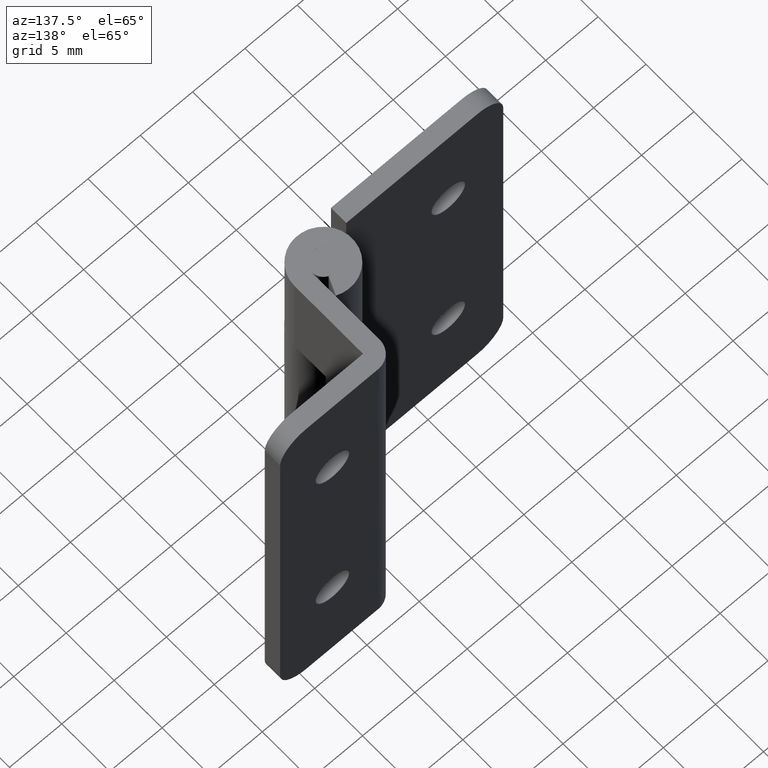
[diagram: clean part render]
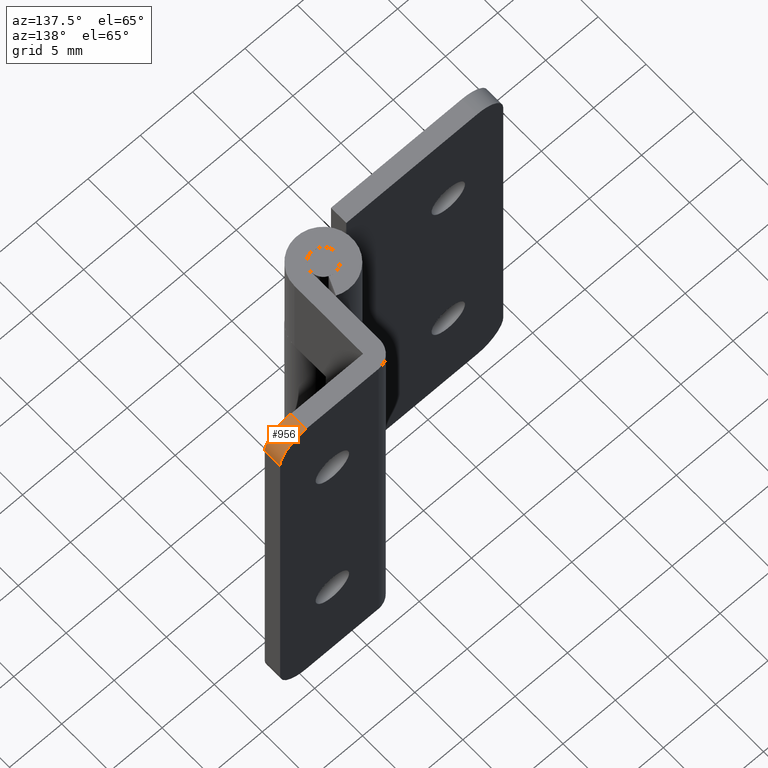
[diagram: same view with one face highlighted and labeled with its STEP entity id]
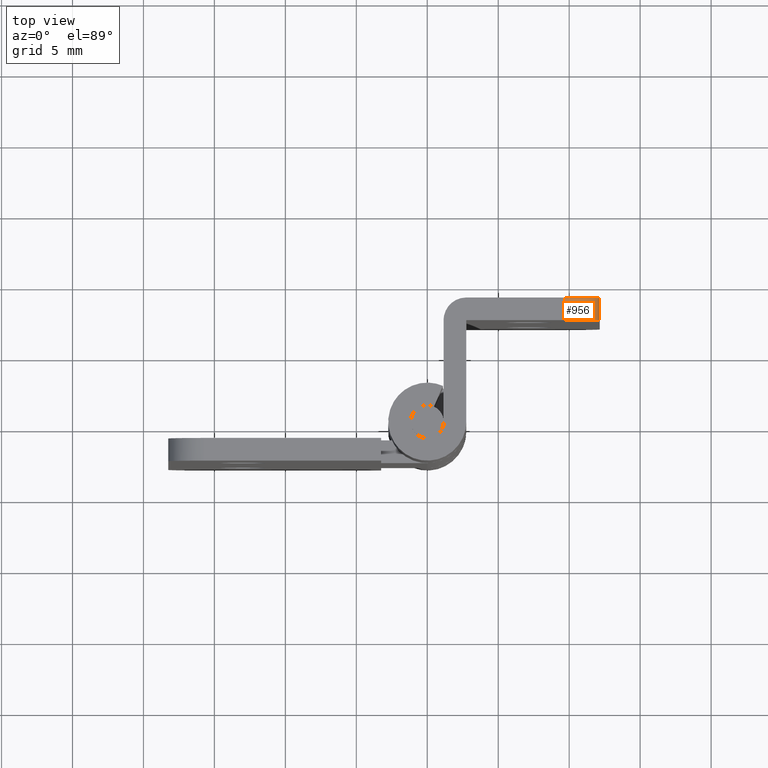
[diagram: same view with one face highlighted and labeled with its STEP entity id]
A machine part, auxiliary view. The second image highlights one B-rep face of the part: STEP entity #956.
A second angle (top view) of the same face is appended — the face is thin or edge-on in the first view.
In plain terms, the highlighted face is a freeform B-spline surface patch.
Its self-contained STEP definition (entity closure, byte-faithful):
#896=CARTESIAN_POINT('',(9.584557629230316,8.789999950000000,39.999143312438889));
#897=CARTESIAN_POINT('',(9.584557629230316,7.109002051249998,39.999143312438889));
#898=CARTESIAN_POINT('',(12.337462022498348,8.789999949999999,40.071230650968488));
#899=CARTESIAN_POINT('',(12.337462022498348,7.109002051250000,40.071230650968488));
#900=CARTESIAN_POINT('',(12.143811197110123,8.789999949999999,37.324199791899517));
#901=CARTESIAN_POINT('',(12.143811197110123,7.109002051249997,37.324199791899517));
#909=(BOUNDED_SURFACE()B_SPLINE_SURFACE(1,2,((#896,#898,#900),(#897,#899,#901)),.UNSPECIFIED.,.F.,.F.,.U.)B_SPLINE_SURFACE_WITH_KNOTS((2,2),(3,3),(0.0,1.0),(0.0,4.427855883053042),.UNSPECIFIED.)GEOMETRIC_REPRESENTATION_ITEM()RATIONAL_B_SPLINE_SURFACE(((1.0,0.670944221461659,0.996392651958202),(1.0,0.670944221461659,0.996392651958202)))REPRESENTATION_ITEM('')SURFACE());
#910=CARTESIAN_POINT('',(12.150000000000000,7.150002000000000,37.500000000000000));
#911=VERTEX_POINT('',#910);
#912=CARTESIAN_POINT('',(9.650000000000000,7.150002000000000,40.0));
#913=VERTEX_POINT('',#912);
#914=CARTESIAN_POINT('',(12.150000000000000,7.150002000000000,37.500000000000000));
#915=CARTESIAN_POINT('',(12.150000000000002,7.150002000000001,39.999999999999993));
#916=CARTESIAN_POINT('',(9.650000000000000,7.150002000000000,40.0));
#924=(BOUNDED_CURVE()B_SPLINE_CURVE(2,(#914,#915,#916),.UNSPECIFIED.,.F.,.U.)CURVE()GEOMETRIC_REPRESENTATION_ITEM()QUASI_UNIFORM_CURVE()RATIONAL_B_SPLINE_CURVE((1.0,0.707106781186548,1.0))REPRESENTATION_ITEM(''));
#925=EDGE_CURVE('',#911,#913,#924,.T.);
#926=ORIENTED_EDGE('',*,*,#925,.F.);
#927=CARTESIAN_POINT('',(12.150000000000000,8.750000000000000,37.500000000000000));
#928=VERTEX_POINT('',#927);
#929=CARTESIAN_POINT('',(12.150000000000000,8.750000000000000,37.500000000000000));
#930=CARTESIAN_POINT('',(12.150000000000000,7.150002000000000,37.500000000000000));
#931=QUASI_UNIFORM_CURVE('',1,(#929,#930),.UNSPECIFIED.,.F.,.U.);
#932=EDGE_CURVE('',#928,#911,#931,.T.);
#933=ORIENTED_EDGE('',*,*,#932,.F.);
#934=CARTESIAN_POINT('',(9.650000000000000,8.750000000000000,40.0));
#935=VERTEX_POINT('',#934);
#936=CARTESIAN_POINT('',(9.650000000000000,8.750000000000000,40.0));
#937=CARTESIAN_POINT('',(12.150000000000002,8.750000000000000,39.999999999999993));
#938=CARTESIAN_POINT('',(12.150000000000000,8.750000000000000,37.500000000000000));
#946=(BOUNDED_CURVE()B_SPLINE_CURVE(2,(#936,#937,#938),.UNSPECIFIED.,.F.,.U.)CURVE()GEOMETRIC_REPRESENTATION_ITEM()QUASI_UNIFORM_CURVE()RATIONAL_B_SPLINE_CURVE((1.0,0.707106781186548,1.0))REPRESENTATION_ITEM(''));
#947=EDGE_CURVE('',#935,#928,#946,.T.);
#948=ORIENTED_EDGE('',*,*,#947,.F.);
#949=CARTESIAN_POINT('',(9.650000000000000,7.150002000000000,40.0));
#950=CARTESIAN_POINT('',(9.650000000000000,8.750000000000000,40.0));
#951=QUASI_UNIFORM_CURVE('',1,(#949,#950),.UNSPECIFIED.,.F.,.U.);
#952=EDGE_CURVE('',#913,#935,#951,.T.);
#953=ORIENTED_EDGE('',*,*,#952,.F.);
#954=EDGE_LOOP('',(#926,#933,#948,#953));
#955=FACE_OUTER_BOUND('',#954,.T.);
#956=ADVANCED_FACE('',(#955),#909,.T.);